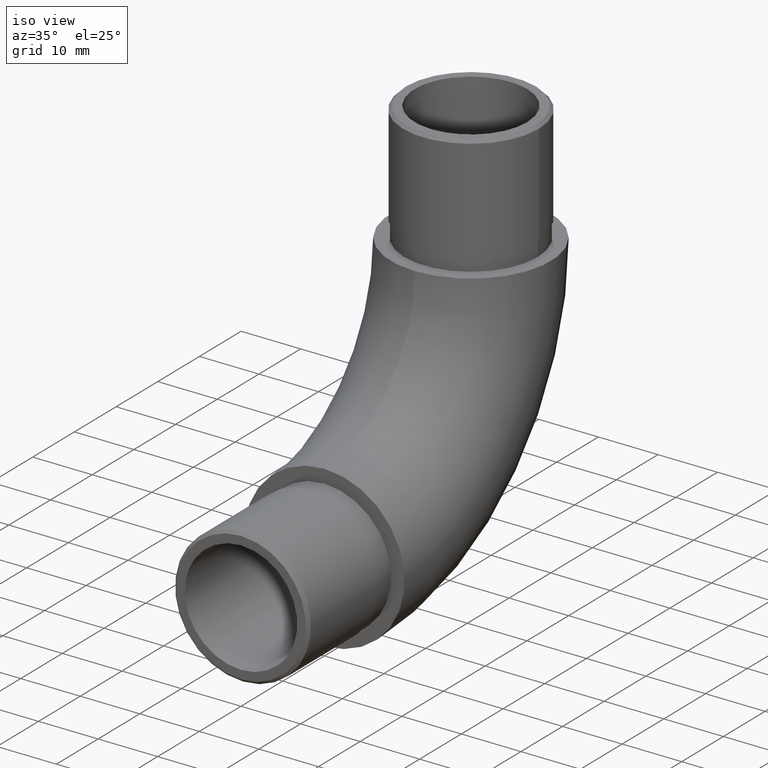
[diagram: clean part render]
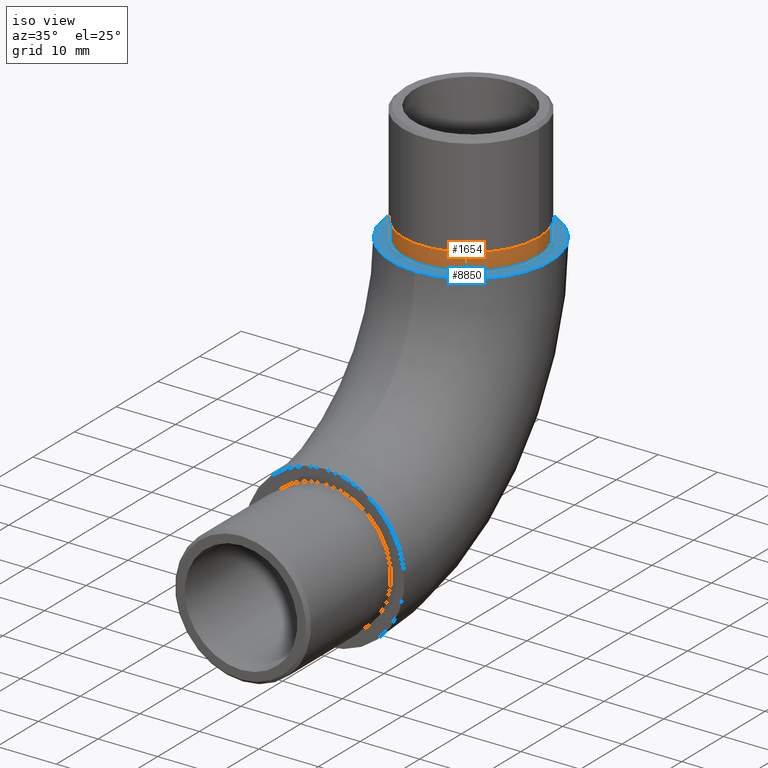
[diagram: same view with the hole feature highlighted: cylindrical wall and planar end face, labeled with their STEP entity ids]
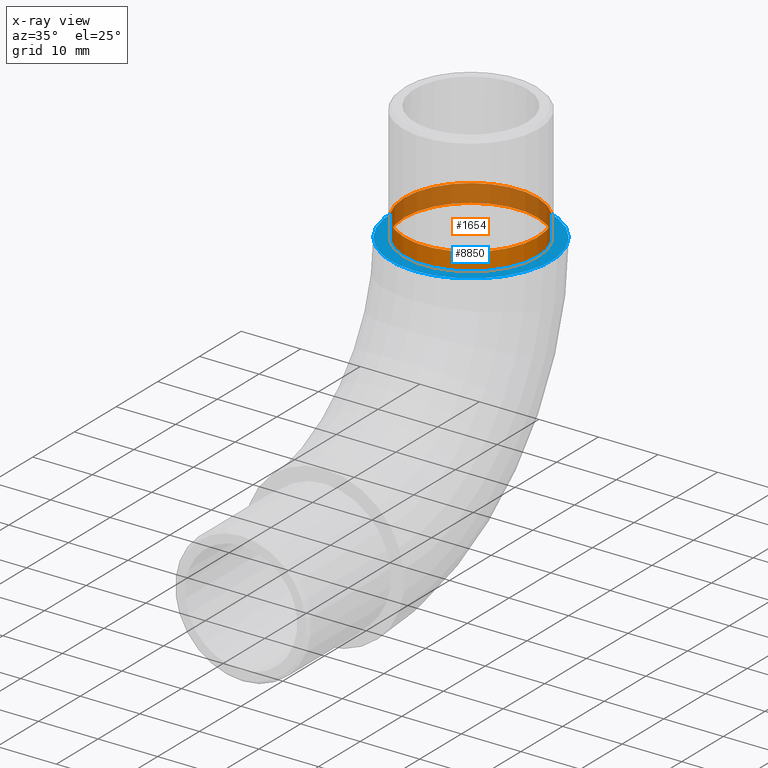
[diagram: x-ray of the same camera — body ghosted, the hole faces saturated]
A machine part, iso view. The highlighted faces form one hole feature of diameter 22.4 mm: the cylindrical wall (entity #1654, orange) and its adjacent planar end face (entity #8850, blue) — they share a circular edge in the B-rep.
The next image is the same camera in x-ray (body ghosted, the hole faces saturated) — the bore reads through the body.
Wall:
#10 = EDGE_LOOP ( 'NONE', ( #8796 ) ) ;
#400 = CIRCLE ( 'NONE', #4814, 11.20000000000000100 ) ;
#1349 = EDGE_CURVE ( 'NONE', #9137, #9137, #400, .T. ) ;
#1654 = ADVANCED_FACE ( 'NONE', ( #5263, #11338 ), #3834, .T. ) ;
#3746 = ORIENTED_EDGE ( 'NONE', *, *, #7021, .F. ) ;
#3834 = CYLINDRICAL_SURFACE ( 'NONE', #8216, 11.20000000000000100 ) ;
#4814 = AXIS2_PLACEMENT_3D ( 'NONE', #10839, #10977, #11887 ) ;
#4832 = EDGE_LOOP ( 'NONE', ( #3746 ) ) ;
#4897 = CARTESIAN_POINT ( 'NONE',  ( 11.20000000000000100, 35.14999999999999900, 48.60000000000000100 ) ) ;
#5263 = FACE_OUTER_BOUND ( 'NONE', #4832, .T. ) ;
#5744 = DIRECTION ( 'NONE',  ( -0.0000000000000000000, -0.0000000000000000000, -1.000000000000000000 ) ) ;
#6017 = DIRECTION ( 'NONE',  ( 0.0000000000000000000, 0.0000000000000000000, 1.000000000000000000 ) ) ;
#6655 = CIRCLE ( 'NONE', #10667, 11.20000000000000100 ) ;
#6856 = CARTESIAN_POINT ( 'NONE',  ( 11.20000000000000100, 35.14999999999999900, 51.60000000000000900 ) ) ;
#7021 = EDGE_CURVE ( 'NONE', #7420, #7420, #6655, .T. ) ;
#7420 = VERTEX_POINT ( 'NONE', #6856 ) ;
#8216 = AXIS2_PLACEMENT_3D ( 'NONE', #8634, #5744, #10655 ) ;
#8634 = CARTESIAN_POINT ( 'NONE',  ( 0.0000000000000000000, 35.14999999999999900, 51.60000000000000900 ) ) ;
#8796 = ORIENTED_EDGE ( 'NONE', *, *, #1349, .T. ) ;
#9043 = DIRECTION ( 'NONE',  ( 1.000000000000000000, 0.0000000000000000000, 0.0000000000000000000 ) ) ;
#9137 = VERTEX_POINT ( 'NONE', #4897 ) ;
#9902 = CARTESIAN_POINT ( 'NONE',  ( 0.0000000000000000000, 35.14999999999999900, 51.60000000000000900 ) ) ;
#10655 = DIRECTION ( 'NONE',  ( -1.000000000000000000, 0.0000000000000000000, 0.0000000000000000000 ) ) ;
#10667 = AXIS2_PLACEMENT_3D ( 'NONE', #9902, #6017, #9043 ) ;
#10839 = CARTESIAN_POINT ( 'NONE',  ( 0.0000000000000000000, 35.14999999999999900, 48.60000000000000100 ) ) ;
#10977 = DIRECTION ( 'NONE',  ( 0.0000000000000000000, 0.0000000000000000000, 1.000000000000000000 ) ) ;
#11338 = FACE_OUTER_BOUND ( 'NONE', #10, .T. ) ;
#11887 = DIRECTION ( 'NONE',  ( 1.000000000000000000, 0.0000000000000000000, 0.0000000000000000000 ) ) ;
End face:
#114 = EDGE_LOOP ( 'NONE', ( #9731 ) ) ;
#400 = CIRCLE ( 'NONE', #4814, 11.20000000000000100 ) ;
#718 = PLANE ( 'NONE',  #6353 ) ;
#1349 = EDGE_CURVE ( 'NONE', #9137, #9137, #400, .T. ) ;
#2851 = DIRECTION ( 'NONE',  ( 0.0000000000000000000, -1.000000000000000000, 6.123233995736766000E-017 ) ) ;
#4154 = VERTEX_POINT ( 'NONE', #9686 ) ;
#4595 = FACE_OUTER_BOUND ( 'NONE', #114, .T. ) ;
#4814 = AXIS2_PLACEMENT_3D ( 'NONE', #10839, #10977, #11887 ) ;
#4859 = ORIENTED_EDGE ( 'NONE', *, *, #1349, .F. ) ;
#4897 = CARTESIAN_POINT ( 'NONE',  ( 11.20000000000000100, 35.14999999999999900, 48.60000000000000100 ) ) ;
#5493 = CARTESIAN_POINT ( 'NONE',  ( 0.0000000000000000000, 35.14999999999999100, 48.60000000000000100 ) ) ;
#6353 = AXIS2_PLACEMENT_3D ( 'NONE', #11894, #10500, #2851 ) ;
#6378 = EDGE_LOOP ( 'NONE', ( #4859 ) ) ;
#6477 = DIRECTION ( 'NONE',  ( 0.0000000000000000000, 6.123233995736766000E-017, 1.000000000000000000 ) ) ;
#6828 = AXIS2_PLACEMENT_3D ( 'NONE', #5493, #6477, #7462 ) ;
#7295 = EDGE_CURVE ( 'NONE', #4154, #4154, #7577, .T. ) ;
#7462 = DIRECTION ( 'NONE',  ( 0.0000000000000000000, -1.000000000000000000, 0.0000000000000000000 ) ) ;
#7577 = CIRCLE ( 'NONE', #6828, 13.45000000000000300 ) ;
#8850 = ADVANCED_FACE ( 'NONE', ( #4595, #8948 ), #718, .T. ) ;
#8948 = FACE_BOUND ( 'NONE', #6378, .T. ) ;
#9137 = VERTEX_POINT ( 'NONE', #4897 ) ;
#9686 = CARTESIAN_POINT ( 'NONE',  ( 0.0000000000000000000, 21.69999999999998900, 48.60000000000000100 ) ) ;
#9731 = ORIENTED_EDGE ( 'NONE', *, *, #7295, .T. ) ;
#10500 = DIRECTION ( 'NONE',  ( 0.0000000000000000000, 6.123233995736766000E-017, 1.000000000000000000 ) ) ;
#10839 = CARTESIAN_POINT ( 'NONE',  ( 0.0000000000000000000, 35.14999999999999900, 48.60000000000000100 ) ) ;
#10977 = DIRECTION ( 'NONE',  ( 0.0000000000000000000, 0.0000000000000000000, 1.000000000000000000 ) ) ;
#11887 = DIRECTION ( 'NONE',  ( 1.000000000000000000, 0.0000000000000000000, 0.0000000000000000000 ) ) ;
#11894 = CARTESIAN_POINT ( 'NONE',  ( 0.0000000000000000000, 35.14999999999999100, 48.60000000000000100 ) ) ;